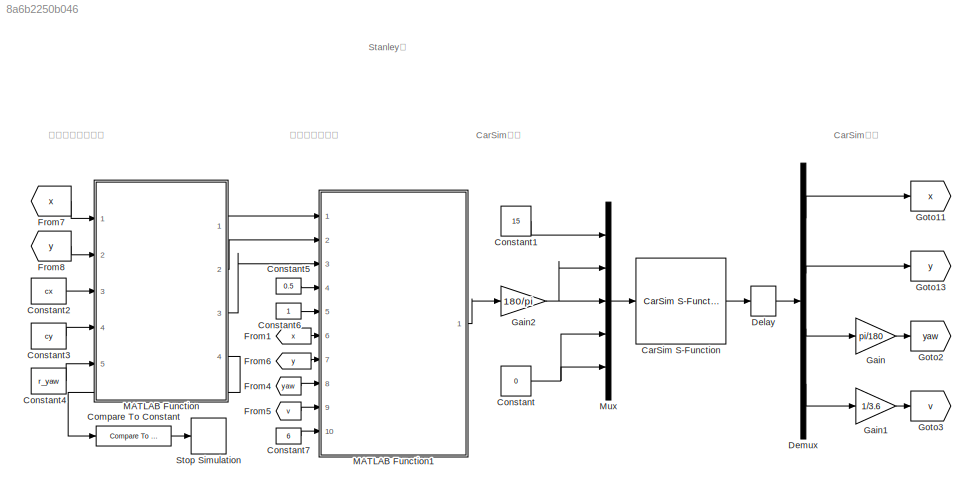
MODEL slx_8a6b2250b046
KIND model
CONFIG AbsTol = auto
CONFIG EnableMultiTasking = off
CONFIG FixedStep = auto
CONFIG MaxStep = auto
CONFIG MinStep = auto
CONFIG RelTol = 1e-3
CONFIG SampleTimeConstraint = Unconstrained
CONFIG SolverName = VariableStepAuto
CONFIG StartTime = 0.0
CONFIG StopTime = 70
BLOCK [Reference] CarSim S-Function  REF=Solver_SF/CarSim S-Function
  Ports = [1, 1]
  Priority = 1
  SourceBlock = Solver_SF/CarSim S-Function
  SourceProductName = CarSim S-Function
  SourceType = Vehicle math model library
BLOCK [Reference] Compare To Constant  REF=simulink/Logic and Bit
Operations/Compare
To Constant
  Ports = [1, 1]
  SourceBlock = simulink/Logic and Bit\nOperations/Compare\nTo Constant
  SourceProductBaseCode = SL
  SourceType = Compare To Constant
BLOCK [Constant] Constant
  Value = 0
BLOCK [Constant] Constant1
  Value = 15
BLOCK [Constant] Constant2
  Value = cx
BLOCK [Constant] Constant3
  Value = cy
BLOCK [Constant] Constant4
  Value = r_yaw
BLOCK [Constant] Constant5
  Value = 0.5
BLOCK [Constant] Constant6
BLOCK [Constant] Constant7
  Value = 6
BLOCK [Delay] Delay
  DelayLength = 1
  InitialCondition = 0
  InputPortMap = u0
  Ports = [1, 1]
  UseCircularBuffer = on
  UserDataPersistent = on
BLOCK [Demux] Demux
  Ports = [1, 4]
BLOCK [From] From1
  GotoTag = x
BLOCK [From] From4
  GotoTag = yaw
BLOCK [From] From5
  GotoTag = v
BLOCK [From] From6
  GotoTag = y
BLOCK [From] From7
  GotoTag = x
BLOCK [From] From8
  GotoTag = y
BLOCK [Gain] Gain
  Gain = pi/180
BLOCK [Gain] Gain1
  Gain = 1/3.6
BLOCK [Gain] Gain2
  Gain = 180/pi
BLOCK [Goto] Goto11
  GotoTag = x
BLOCK [Goto] Goto13
  GotoTag = y
BLOCK [Goto] Goto2
  GotoTag = yaw
BLOCK [Goto] Goto3
  GotoTag = v
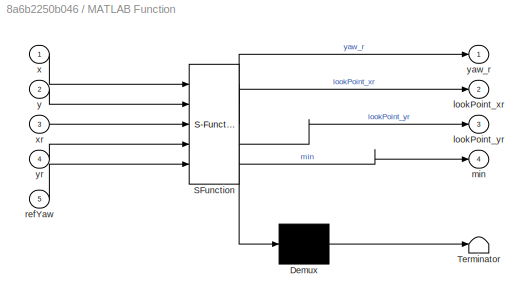
BLOCK [SubSystem] MATLAB Function
  ErrorFcn = Stateflow.Translate.translate
  PermitHierarchicalResolution = ExplicitOnly
  Ports = [5, 4]
  RequestExecContextInheritance = off
  SFBlockType = MATLAB Function
  TreatAsAtomicUnit = on
BLOCK [Demux] MATLAB Function/ Demux 
  Outputs = 1
  Ports = [1, 1]
BLOCK [S-Function] MATLAB Function/ SFunction 
  EnableBusSupport = on
  FunctionName = sf_sfun
  PortCounts = [5 5]
  Ports = [5, 5]
  SFcnIsStateOwnerBlock = off
  SFunctionDeploymentMode = off
  Tag = Stateflow S-Function 2
BLOCK [Terminator] MATLAB Function/ Terminator 
BLOCK [Outport] MATLAB Function/lookPoint_xr
  Port = 2
BLOCK [Outport] MATLAB Function/lookPoint_yr
  Port = 3
BLOCK [Outport] MATLAB Function/min
  Port = 4
BLOCK [Inport] MATLAB Function/refYaw
  Port = 5
BLOCK [Inport] MATLAB Function/x
BLOCK [Inport] MATLAB Function/xr
  Port = 3
BLOCK [Inport] MATLAB Function/y
  Port = 2
BLOCK [Outport] MATLAB Function/yaw_r
BLOCK [Inport] MATLAB Function/yr
  Port = 4
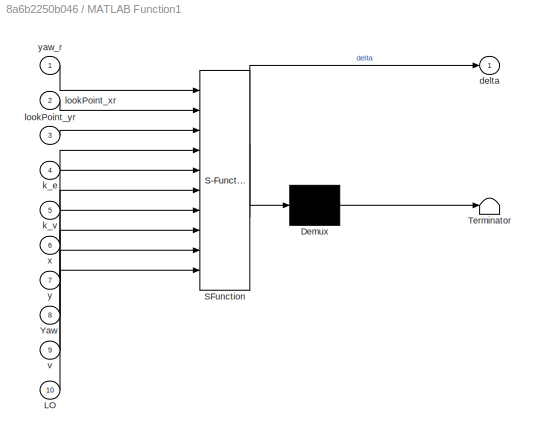
BLOCK [SubSystem] MATLAB Function1
  ErrorFcn = Stateflow.Translate.translate
  PermitHierarchicalResolution = ExplicitOnly
  Ports = [10, 1]
  RequestExecContextInheritance = off
  SFBlockType = MATLAB Function
  TreatAsAtomicUnit = on
BLOCK [Demux] MATLAB Function1/ Demux 
  Outputs = 1
  Ports = [1, 1]
BLOCK [S-Function] MATLAB Function1/ SFunction 
  EnableBusSupport = on
  FunctionName = sf_sfun
  PortCounts = [10 2]
  Ports = [10, 2]
  SFcnIsStateOwnerBlock = off
  SFunctionDeploymentMode = off
  Tag = Stateflow S-Function 1
BLOCK [Terminator] MATLAB Function1/ Terminator 
BLOCK [Inport] MATLAB Function1/LO
  Port = 10
BLOCK [Inport] MATLAB Function1/Yaw
  Port = 8
BLOCK [Outport] MATLAB Function1/delta
BLOCK [Inport] MATLAB Function1/k_e
  Port = 4
BLOCK [Inport] MATLAB Function1/k_v
  Port = 5
BLOCK [Inport] MATLAB Function1/lookPoint_xr
  Port = 2
BLOCK [Inport] MATLAB Function1/lookPoint_yr
  Port = 3
BLOCK [Inport] MATLAB Function1/v
  Port = 9
BLOCK [Inport] MATLAB Function1/x
  Port = 6
BLOCK [Inport] MATLAB Function1/y
  Port = 7
BLOCK [Inport] MATLAB Function1/yaw_r
BLOCK [Mux] Mux
  DisplayOption = bar
  Inputs = 5
  Ports = [5, 1]
BLOCK [Stop] Stop Simulation
ANNOTATION (root): CarSim输入
ANNOTATION (root): CarSim输出
ANNOTATION (root): 计算：前轮转角
ANNOTATION (root): 计算：匹配点信息
ANNOTATION (root): Stanley法
LINE CarSim S-Function:1 -> Delay:1
LINE Compare To Constant:1 -> Stop Simulation:1
LINE Constant1:1 -> Mux:1
LINE Constant2:1 -> MATLAB Function:3
LINE Constant3:1 -> MATLAB Function:4
LINE Constant4:1 -> MATLAB Function:5
LINE Constant5:1 -> MATLAB Function1:4
LINE Constant6:1 -> MATLAB Function1:5
LINE Constant7:1 -> MATLAB Function1:10
NET Constant:1 -> Mux:4, Mux:5
LINE Delay:1 -> Demux:1
LINE Demux:1 -> Goto11:1
LINE Demux:2 -> Goto13:1
LINE Demux:3 -> Gain:1
LINE Demux:4 -> Gain1:1
LINE From1:1 -> MATLAB Function1:6
LINE From4:1 -> MATLAB Function1:8
LINE From5:1 -> MATLAB Function1:9
LINE From6:1 -> MATLAB Function1:7
LINE From7:1 -> MATLAB Function:1
LINE From8:1 -> MATLAB Function:2
LINE Gain1:1 -> Goto3:1
NET Gain2:1 -> Mux:2, Mux:3
LINE Gain:1 -> Goto2:1
LINE MATLAB Function1:1 -> Gain2:1
LINE MATLAB Function:1 -> MATLAB Function1:1
LINE MATLAB Function:2 -> MATLAB Function1:2
LINE MATLAB Function:3 -> MATLAB Function1:3
LINE MATLAB Function:4 -> Compare To Constant:1
LINE Mux:1 -> CarSim S-Function:1
note: NET lines group one-source signal fan-out (src -> all destinations, sorted); 1:1 wires keep LINE
CHART MATLAB Function1 states=1 transitions=1
  STATE_LABEL 'eML_blk_kernel()'
  STATE_LABEL 'SCRIPT:\n%****************************获得控制量：前轮转向*************************\n\nfunction delta = control(yaw_r,lookPoint_xr,lookPoint_yr,k_e,k_v,x,y,Yaw,v,LO)\n%*******************CarSim转角向左为正*************************************\n\n%横向误差：两点距离\ne_y=sqrt((x-lookPoint_xr)^2+(y-lookPoint_yr)^2);\n\n%判断转向：转换到车辆坐标系下的 纵坐标 正负，小于0，需要向右拐，让其为负值\ndx=x-lookPoint_xr;\ndy=y-lookPoint_yr;\nL_R = dy*cos(Yaw) - dx*sin(Yaw);\n\nif ...<+557ch>'
CHART MATLAB Function states=1 transitions=1
  STATE_LABEL 'eML_blk_kernel()'
  STATE_LABEL 'SCRIPT:\n% 首先在参考轨迹上搜索离当前车辆位置最近的点\nfunction [yaw_r,lookPoint_xr, lookPoint_yr,min] = findPoint(x,y, xr,yr,refYaw)\n\n% 找到距离当前位置最近的一个参考轨迹点的序号\nn=length(xr);\nd_min=(x-xr(1))^2+(y-yr(1))^2;\nmin=1;\nfor i = 1:n\n    d = (x-xr(i))^2+(y-yr(i))^2; \n    if d<d_min\n        d_min=d;\n        min=i;\n    end\nend\n\n%通过轨迹点序号得出相关轨迹x,y位置信息与切线夹角\nlookPoint_xr = xr(min);\nlookPoint_yr = yr(min);\nyaw_r=refYaw(min);\n\nend\n'
CHART  states=0 transitions=0
CHART  states=0 transitions=0
